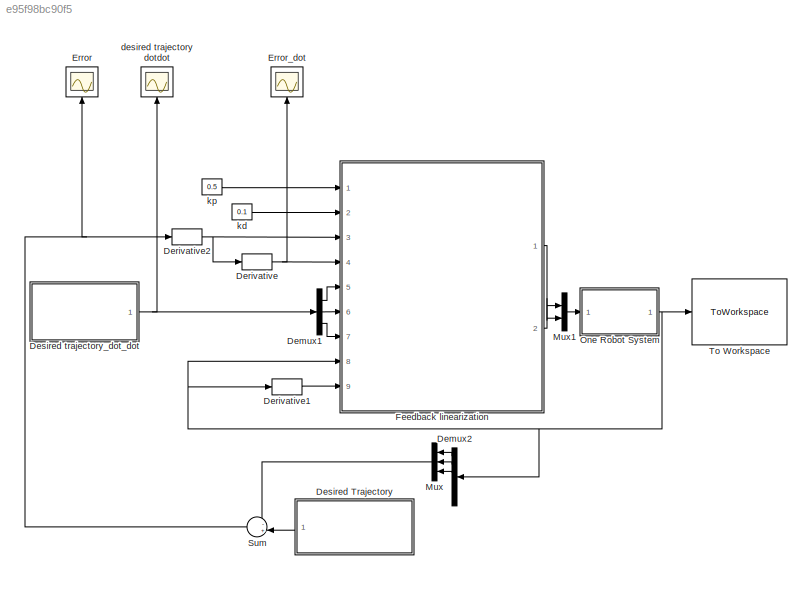
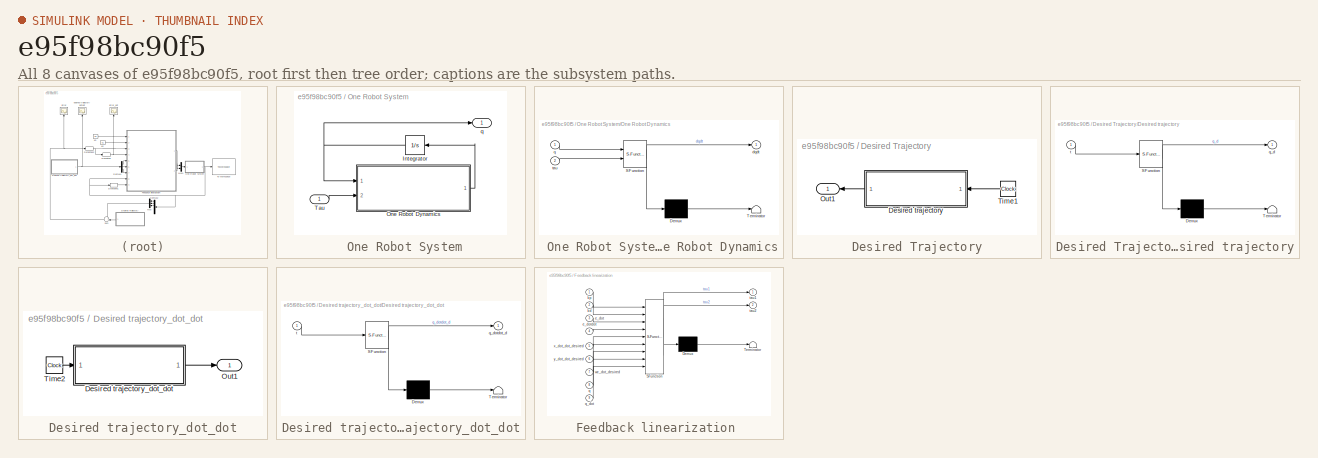
[diagram: thumbnail index - all 8 canvases of the model, root first then tree order]
MODEL slx_e95f98bc90f5
KIND model
BLOCK [Scope]  Error_dot
  Floating = off
  NumInputPorts = 1
  Ports = [1]
  ShowLegends = off
BLOCK [SubSystem]  One Robot System
  Ports = [1, 1]
  RequestExecContextInheritance = off
BLOCK [Integrator]  One Robot System/Integrator
  InitialCondition = [.2136; 0.7015\n;pi/3;0;0;0]
  LimitOutput = on
  LowerSaturationLimit = [-inf,-inf,-inf,-0.4,-0.4,-0.5]
  Ports = [1, 1]
  UpperSaturationLimit = [inf,inf,inf,0.4,0.4,0.5]
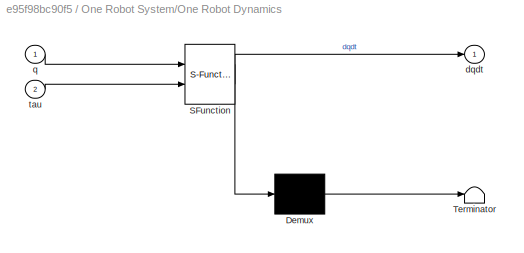
BLOCK [SubSystem]  One Robot System/One Robot Dynamics
  ErrorFcn = Stateflow.Translate.translate
  PermitHierarchicalResolution = ExplicitOnly
  Ports = [2, 1]
  RequestExecContextInheritance = off
  SFBlockType = MATLAB Function
  TreatAsAtomicUnit = on
BLOCK [Demux]  One Robot System/One Robot Dynamics/ Demux 
  Outputs = 1
  Ports = [1, 1]
BLOCK [S-Function]  One Robot System/One Robot Dynamics/ SFunction 
  EnableBusSupport = on
  FunctionName = sf_sfun
  PortCounts = [2 2]
  Ports = [2, 2]
  Tag = Stateflow S-Function OneRobot_slidingmode 2
BLOCK [Terminator]  One Robot System/One Robot Dynamics/ Terminator 
BLOCK [Outport]  One Robot System/One Robot Dynamics/dqdt
  IconDisplay = Port number
BLOCK [Inport]  One Robot System/One Robot Dynamics/q
  IconDisplay = Port number
BLOCK [Inport]  One Robot System/One Robot Dynamics/tau
  IconDisplay = Port number
  Port = 2
BLOCK [Inport]  One Robot System/Tau
  IconDisplay = Port number
BLOCK [Outport]  One Robot System/q
  IconDisplay = Port number
BLOCK [Demux] Demux1
  DisplayOption = bar
  Outputs = 3
  Ports = [1, 3]
BLOCK [Demux] Demux2
  DisplayOption = bar
  Outputs = 6
  Ports = [1, 6]
BLOCK [Derivative] Derivative
BLOCK [Derivative] Derivative1
BLOCK [Derivative] Derivative2
BLOCK [SubSystem] Desired Trajectory
  Ports = [0, 1]
  RequestExecContextInheritance = off
BLOCK [SubSystem] Desired Trajectory/Desired trajectory
  ErrorFcn = Stateflow.Translate.translate
  PermitHierarchicalResolution = ExplicitOnly
  Ports = [1, 1]
  RequestExecContextInheritance = off
  SFBlockType = MATLAB Function
  TreatAsAtomicUnit = on
BLOCK [Demux] Desired Trajectory/Desired trajectory/ Demux 
  Outputs = 1
  Ports = [1, 1]
BLOCK [S-Function] Desired Trajectory/Desired trajectory/ SFunction 
  EnableBusSupport = on
  FunctionName = sf_sfun
  PortCounts = [1 2]
  Ports = [1, 2]
  Tag = Stateflow S-Function OneRobot_slidingmode 1
BLOCK [Terminator] Desired Trajectory/Desired trajectory/ Terminator 
BLOCK [Outport] Desired Trajectory/Desired trajectory/q_d
  IconDisplay = Port number
BLOCK [Inport] Desired Trajectory/Desired trajectory/t
  IconDisplay = Port number
BLOCK [Outport] Desired Trajectory/Out1
  IconDisplay = Port number
BLOCK [Clock] Desired Trajectory/Time1
BLOCK [SubSystem] Desired trajectory_dot_dot
  Ports = [0, 1]
  RequestExecContextInheritance = off
BLOCK [SubSystem] Desired trajectory_dot_dot/Desired trajectory_dot_dot
  ErrorFcn = Stateflow.Translate.translate
  PermitHierarchicalResolution = ExplicitOnly
  Ports = [1, 1]
  RequestExecContextInheritance = off
  SFBlockType = MATLAB Function
  TreatAsAtomicUnit = on
BLOCK [Demux] Desired trajectory_dot_dot/Desired trajectory_dot_dot/ Demux 
  Outputs = 1
  Ports = [1, 1]
BLOCK [S-Function] Desired trajectory_dot_dot/Desired trajectory_dot_dot/ SFunction 
  EnableBusSupport = on
  FunctionName = sf_sfun
  PortCounts = [1 2]
  Ports = [1, 2]
  Tag = Stateflow S-Function OneRobot_slidingmode 4
BLOCK [Terminator] Desired trajectory_dot_dot/Desired trajectory_dot_dot/ Terminator 
BLOCK [Outport] Desired trajectory_dot_dot/Desired trajectory_dot_dot/q_dotdot_d
  IconDisplay = Port number
BLOCK [Inport] Desired trajectory_dot_dot/Desired trajectory_dot_dot/t
  IconDisplay = Port number
BLOCK [Outport] Desired trajectory_dot_dot/Out1
  IconDisplay = Port number
BLOCK [Clock] Desired trajectory_dot_dot/Time2
BLOCK [Scope] Error
  Floating = off
  NumInputPorts = 1
  Ports = [1]
  SaveName = ScopeData2
  ShowLegends = off
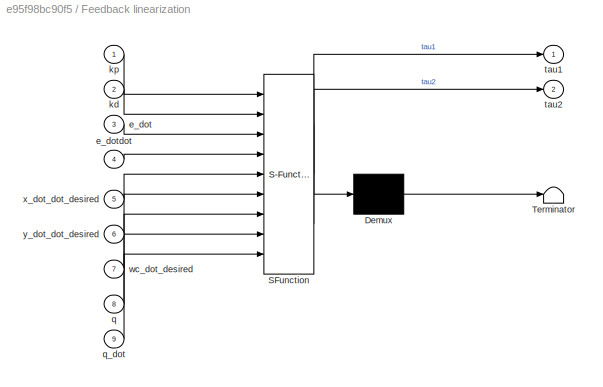
BLOCK [SubSystem] Feedback linearization 
  ErrorFcn = Stateflow.Translate.translate
  PermitHierarchicalResolution = ExplicitOnly
  Ports = [9, 2]
  RequestExecContextInheritance = off
  SFBlockType = MATLAB Function
  TreatAsAtomicUnit = on
BLOCK [Demux] Feedback linearization / Demux 
  Outputs = 1
  Ports = [1, 1]
BLOCK [S-Function] Feedback linearization / SFunction 
  EnableBusSupport = on
  FunctionName = sf_sfun
  PortCounts = [9 3]
  Ports = [9, 3]
  Tag = Stateflow S-Function OneRobot_slidingmode 3
BLOCK [Terminator] Feedback linearization / Terminator 
BLOCK [Inport] Feedback linearization /e_dot
  IconDisplay = Port number
  Port = 3
BLOCK [Inport] Feedback linearization /e_dotdot
  IconDisplay = Port number
  Port = 4
BLOCK [Inport] Feedback linearization /kd
  IconDisplay = Port number
  Port = 2
BLOCK [Inport] Feedback linearization /kp
  IconDisplay = Port number
BLOCK [Inport] Feedback linearization /q
  IconDisplay = Port number
  Port = 8
BLOCK [Inport] Feedback linearization /q_dot
  IconDisplay = Port number
  Port = 9
BLOCK [Outport] Feedback linearization /tau1
  IconDisplay = Port number
BLOCK [Outport] Feedback linearization /tau2
  IconDisplay = Port number
  Port = 2
BLOCK [Inport] Feedback linearization /wc_dot_desired
  IconDisplay = Port number
  Port = 7
BLOCK [Inport] Feedback linearization /x_dot_dot_desired
  IconDisplay = Port number
  Port = 5
BLOCK [Inport] Feedback linearization /y_dot_dot_desired
  IconDisplay = Port number
  Port = 6
BLOCK [Mux] Mux
  DisplayOption = bar
  Inputs = 3
  Ports = [3, 1]
BLOCK [Mux] Mux1
  DisplayOption = bar
  Inputs = 2
  Ports = [2, 1]
BLOCK [Sum] Sum
  IconShape = round
  InputSameDT = off
  Inputs = -+|
  OutDataTypeStr = Inherit: Inherit via internal rule
  Ports = [2, 1]
  SaturateOnIntegerOverflow = off
BLOCK [ToWorkspace] To Workspace
  FixptAsFi = on
  MaxDataPoints = inf
  Ports = [1]
  SampleTime = -1
  VariableName = q_oufromSIM
BLOCK [Scope] desired trajectory dotdot
  Floating = off
  NumInputPorts = 1
  Ports = [1]
  SaveName = ScopeData1
  ShowLegends = off
BLOCK [Constant] kd
  Value = 0.1
BLOCK [Constant] kp
  Value = 0.5
NET  One Robot System/Integrator:1 ->  One Robot System/One Robot Dynamics:1,  One Robot System/q:1
LINE  One Robot System/One Robot Dynamics:1 ->  One Robot System/Integrator:1
LINE  One Robot System/Tau:1 ->  One Robot System/One Robot Dynamics:2
NET  One Robot System:1 -> Demux2:1, Derivative1:1, Feedback linearization :8, To Workspace:1
LINE Demux1:1 -> Feedback linearization :5
LINE Demux1:2 -> Feedback linearization :6
LINE Demux1:3 -> Feedback linearization :7
LINE Demux2:1 -> Mux:1
LINE Demux2:2 -> Mux:2
LINE Demux2:3 -> Mux:3
LINE Derivative1:1 -> Feedback linearization :9
NET Derivative2:1 -> Derivative:1, Feedback linearization :3
NET Derivative:1 ->  Error_dot:1, Feedback linearization :4
LINE Desired Trajectory/Desired trajectory:1 -> Desired Trajectory/Out1:1
LINE Desired Trajectory/Time1:1 -> Desired Trajectory/Desired trajectory:1
LINE Desired Trajectory:1 -> Sum:2
LINE Desired trajectory_dot_dot/Desired trajectory_dot_dot:1 -> Desired trajectory_dot_dot/Out1:1
LINE Desired trajectory_dot_dot/Time2:1 -> Desired trajectory_dot_dot/Desired trajectory_dot_dot:1
NET Desired trajectory_dot_dot:1 -> Demux1:1, desired trajectory dotdot:1
LINE Feedback linearization :1 -> Mux1:1
LINE Feedback linearization :2 -> Mux1:2
LINE Mux1:1 ->  One Robot System:1
LINE Mux:1 -> Sum:1
NET Sum:1 -> Derivative2:1, Error:1
LINE kd:1 -> Feedback linearization :2
LINE kp:1 -> Feedback linearization :1
note: NET lines group one-source signal fan-out (src -> all destinations, sorted); 1:1 wires keep LINE
CHART Desired Trajectory/Desired trajectory states=1 transitions=1
  STATE_LABEL 'eML_blk_kernel()'
  STATE_LABEL 'SCRIPT:\nfunction q_d = fcn(t)\n\nq_d = q_desired(t);'
CHART  One Robot System/One Robot Dynamics states=1 transitions=1
  STATE_LABEL 'eML_blk_kernel()'
  STATE_LABEL 'SCRIPT:\nfunction dqdt= Robot_ode(q,tau)\ndqdt=zeros(6,1);\n% global tau_l tau_r; \ntau_l=tau(1);\ntau_r=tau(2);\n\nx_dot=q(4);\ny_dot=q(5);\ntheta=q(3);\ntheta_dot=q(6);\nq_dotdot = Qdotdot(tau_l,tau_r,theta,theta_dot,x_dot,y_dot);\n\ndqdt(1)=q(4);\ndqdt(2)=q(5);\ndqdt(3)=q(6);\ndqdt(4)=(q_dotdot(1));\ndqdt(5)=(q_dotdot(2));\ndqdt(6)=(q_dotdot(3));\n'
CHART Feedback linearization
 
 states=1 transitions=1
  STATE_LABEL 'eML_blk_kernel()'
  STATE_LABEL 'SCRIPT:\nfunction [tau1,tau2]= controller(kp,kd,e_dot,e_dotdot,x_dot_dot_desired,y_dot_dot_desired,wc_dot_desired,q,q_dot)\n\ntheta=q(3);\ntheta_dot=q(6);\nx_dotdot=q_dot(4);\ny_dotdot=q_dot(5);\ntheta_dotdot=q_dot(6);\nx_dot=q(4);\ny_dot=q(5);\nvc=sqrt(x_dot^2+y_dot^2);\nvc_dot_desired=sqrt(x_dot_dot_desired^2+y_dot_dot_desired^2);\n\nu=kp*[sqrt(e_dot(1)^2+e_dot(2)^2);e_dot(3)]+ kd*[sqrt(e_dotdot(1)^2+e_dotdo...<+136ch>'
CHART Desired trajectory_dot_dot/Desired trajectory_dot_dot states=1 transitions=1
  STATE_LABEL 'eML_blk_kernel()'
  STATE_LABEL 'SCRIPT:\nfunction q_dotdot_d = fcn(t)\n\nq_dotdot_d = q_dotdot_desired(t);'
